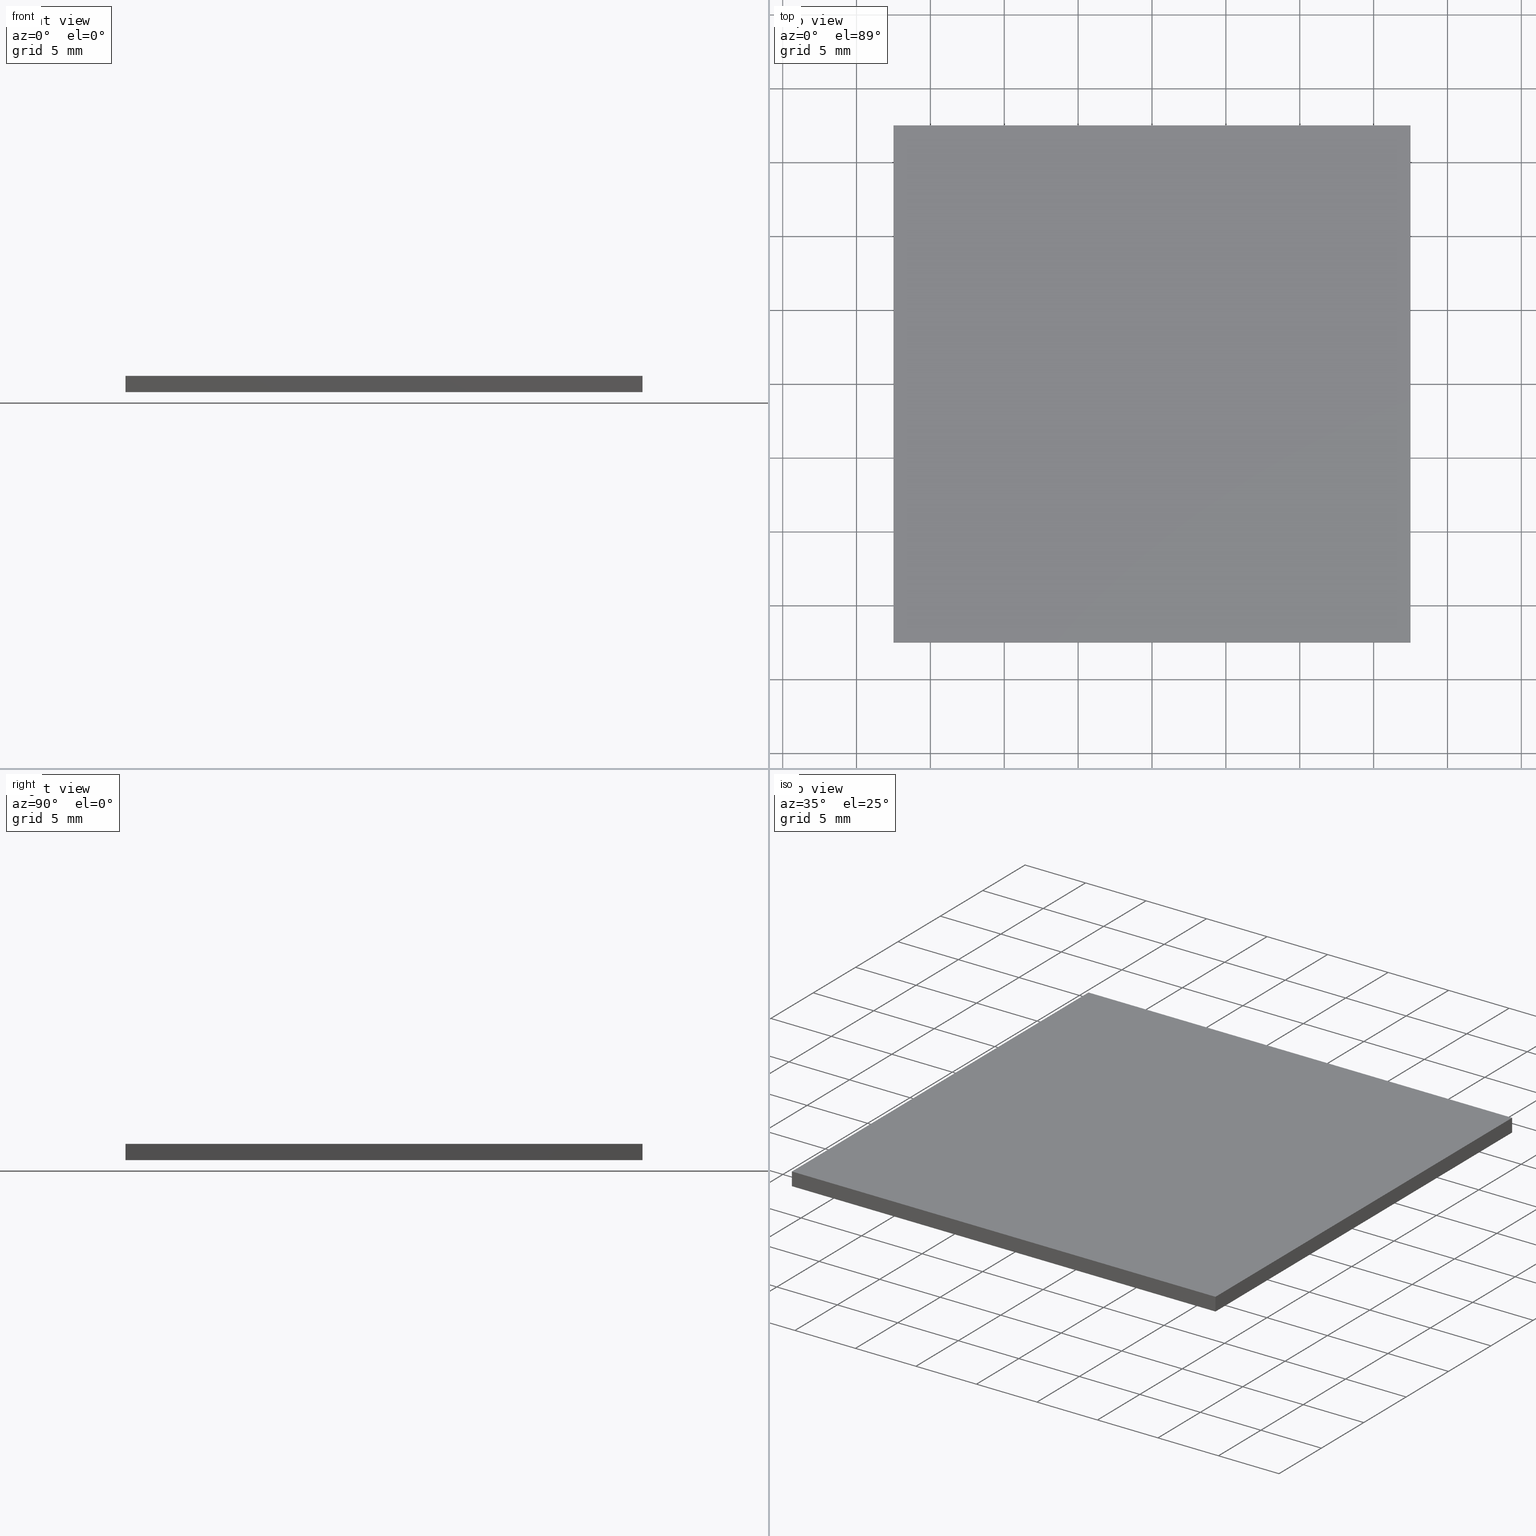
[diagram: canonical four-view strip — front | top / right | iso, engineering-drawing reading convention]
A machine part, canonical four-view strip (front | top / right | iso — engineering-drawing reading convention). The complete STEP part file that produces these views, byte-faithful:
ISO-10303-21;
HEADER;
FILE_DESCRIPTION (( 'STEP AP203' ),
    '1' );
FILE_NAME ('348522.STEP',
    '2024-03-05T01:21:21',
    ( 'Windows User' ),
    ( 'P R C' ),
    'SwSTEP 2.0',
    'SolidWorks 2020',
    '' );
FILE_SCHEMA (( 'CONFIG_CONTROL_DESIGN' ));
ENDSEC;

DATA;
#1 = PERSON_AND_ORGANIZATION ( #55, #57 ) ;
#2 = APPLICATION_CONTEXT ( 'configuration controlled 3d designs of mechanical parts and assemblies' ) ;
#3 = DATE_AND_TIME ( #53, #58 ) ;
#4 = ORIENTED_EDGE ( 'NONE', *, *, #220, .F. ) ;
#5 = PRODUCT_DEFINITION ( 'δ֪', '', #85, #213 ) ;
#6 = FACE_OUTER_BOUND ( 'NONE', #209, .T. ) ;
#7 = AXIS2_PLACEMENT_3D ( 'NONE', #83, #182, #234 ) ;
#8 = DIRECTION ( 'NONE',  ( 1.000000000000000000, 0.000000000000000000, 0.000000000000000000 ) ) ;
#9 = CARTESIAN_POINT ( 'NONE',  ( 17.50000000000000355, -17.49999999999999645, 0.000000000000000000 ) ) ;
#10 = PRODUCT_DEFINITION_SHAPE ( 'NONE', 'NONE',  #5 ) ;
#11 = CARTESIAN_POINT ( 'NONE',  ( 17.50000000000000355, -17.49999999999999645, 1.100000000000000089 ) ) ;
#12 = EDGE_LOOP ( 'NONE', ( #63, #232, #44, #113 ) ) ;
#13 = ADVANCED_FACE ( 'NONE', ( #6 ), #229, .F. ) ;
#14 = CARTESIAN_POINT ( 'NONE',  ( -17.49999999999999645, -17.49999999999999645, 0.000000000000000000 ) ) ;
#15 = CARTESIAN_POINT ( 'NONE',  ( -17.49999999999999645, -17.49999999999999645, 1.100000000000000089 ) ) ;
#16 = CARTESIAN_POINT ( 'NONE',  ( -17.49999999999999645, 17.50000000000000000, 0.000000000000000000 ) ) ;
#17 = CC_DESIGN_PERSON_AND_ORGANIZATION_ASSIGNMENT ( #237, #146, ( #85 ) ) ;
#18 = CALENDAR_DATE ( 2024, 5, 3 ) ;
#19 = AXIS2_PLACEMENT_3D ( 'NONE', #124, #198, #33 ) ;
#20 = COORDINATED_UNIVERSAL_TIME_OFFSET ( 8, 0, .AHEAD. ) ;
#21 = APPROVAL_STATUS ( 'not_yet_approved' ) ;
#22 = ADVANCED_FACE ( 'NONE', ( #46 ), #59, .F. ) ;
#23 = CALENDAR_DATE ( 2024, 5, 3 ) ;
#24 = VECTOR ( 'NONE', #161, 1000.000000000000000 ) ;
#25 = VERTEX_POINT ( 'NONE', #208 ) ;
#26 = EDGE_LOOP ( 'NONE', ( #222, #110, #95, #41 ) ) ;
#27 = CLOSED_SHELL ( 'NONE', ( #22, #13, #49, #176, #179, #100 ) ) ;
#28 = CARTESIAN_POINT ( 'NONE',  ( -17.49999999999999645, -17.49999999999999645, 0.000000000000000000 ) ) ;
#29 = CARTESIAN_POINT ( 'NONE',  ( -17.49999999999999645, -17.49999999999999645, 1.100000000000000089 ) ) ;
#30 = ORIENTED_EDGE ( 'NONE', *, *, #169, .F. ) ;
#31 = LINE ( 'NONE', #99, #158 ) ;
#32 = APPROVAL ( #202, 'δָ��' ) ;
#33 = DIRECTION ( 'NONE',  ( 1.000000000000000000, 0.000000000000000000, 0.000000000000000000 ) ) ;
#34 = CARTESIAN_POINT ( 'NONE',  ( -17.49999999999999645, 17.50000000000000000, 1.100000000000000089 ) ) ;
#35 = CC_DESIGN_SECURITY_CLASSIFICATION ( #122, ( #85 ) ) ;
#36 = DIRECTION ( 'NONE',  ( -0.000000000000000000, -0.000000000000000000, -1.000000000000000000 ) ) ;
#37 = PRODUCT_RELATED_PRODUCT_CATEGORY ( 'detail', '', ( #180 ) ) ;
#38 = CALENDAR_DATE ( 2024, 5, 3 ) ;
#39 = PERSON_AND_ORGANIZATION ( #55, #57 ) ;
#40 = PERSON_AND_ORGANIZATION ( #55, #57 ) ;
#41 = ORIENTED_EDGE ( 'NONE', *, *, #134, .F. ) ;
#42 = VERTEX_POINT ( 'NONE', #43 ) ;
#43 = CARTESIAN_POINT ( 'NONE',  ( 17.50000000000000355, 17.50000000000000000, 0.000000000000000000 ) ) ;
#44 = ORIENTED_EDGE ( 'NONE', *, *, #115, .F. ) ;
#45 = CC_DESIGN_PERSON_AND_ORGANIZATION_ASSIGNMENT ( #40, #152, ( #180 ) ) ;
#46 = FACE_OUTER_BOUND ( 'NONE', #211, .T. ) ;
#47 = ADVANCED_BREP_SHAPE_REPRESENTATION ( '348522', ( #89, #19 ), #167 ) ;
#48 = CARTESIAN_POINT ( 'NONE',  ( 17.50000000000000355, 17.50000000000000000, 1.100000000000000089 ) ) ;
#49 = ADVANCED_FACE ( 'NONE', ( #136 ), #119, .F. ) ;
#50 = LINE ( 'NONE', #196, #24 ) ;
#51 = DIRECTION ( 'NONE',  ( -0.000000000000000000, -1.000000000000000000, -0.000000000000000000 ) ) ;
#52 = DIRECTION ( 'NONE',  ( -1.000000000000000000, -0.000000000000000000, -0.000000000000000000 ) ) ;
#53 = CALENDAR_DATE ( 2024, 5, 3 ) ;
#54 = APPROVAL_DATE_TIME ( #70, #32 ) ;
#55 = PERSON ( 'δָ��', 'δָ��', 'δָ��', ('δָ��'), ('δָ��'), ('δָ��') ) ;
#56 = CC_DESIGN_PERSON_AND_ORGANIZATION_ASSIGNMENT ( #71, #107, ( #85 ) ) ;
#57 = ORGANIZATION ( 'δָ��', 'δָ��', '' ) ;
#58 = LOCAL_TIME ( 9, 21, 21.00000000000000000, #207 ) ;
#59 = PLANE ( 'NONE',  #137 ) ;
#60 = ORIENTED_EDGE ( 'NONE', *, *, #200, .T. ) ;
#61 = DIRECTION ( 'NONE',  ( -0.000000000000000000, -1.000000000000000000, -0.000000000000000000 ) ) ;
#62 = EDGE_CURVE ( 'NONE', #25, #192, #193, .T. ) ;
#63 = ORIENTED_EDGE ( 'NONE', *, *, #171, .T. ) ;
#64 = CARTESIAN_POINT ( 'NONE',  ( -17.49999999999999645, -17.49999999999999645, 1.100000000000000089 ) ) ;
#65 = DIRECTION ( 'NONE',  ( -1.000000000000000000, 0.000000000000000000, -0.000000000000000000 ) ) ;
#66 = FACE_OUTER_BOUND ( 'NONE', #210, .T. ) ;
#67 = EDGE_CURVE ( 'NONE', #172, #117, #177, .T. ) ;
#68 = LINE ( 'NONE', #101, #73 ) ;
#69 = VECTOR ( 'NONE', #165, 1000.000000000000000 ) ;
#70 = DATE_AND_TIME ( #18, #76 ) ;
#71 = PERSON_AND_ORGANIZATION ( #55, #57 ) ;
#72 = ORIENTED_EDGE ( 'NONE', *, *, #220, .T. ) ;
#73 = VECTOR ( 'NONE', #217, 1000.000000000000000 ) ;
#74 = EDGE_CURVE ( 'NONE', #91, #192, #154, .T. ) ;
#75 = VERTEX_POINT ( 'NONE', #227 ) ;
#76 = LOCAL_TIME ( 9, 21, 21.00000000000000000, #168 ) ;
#77 = FACE_OUTER_BOUND ( 'NONE', #26, .T. ) ;
#78 = EDGE_CURVE ( 'NONE', #117, #42, #93, .T. ) ;
#79 = ORIENTED_EDGE ( 'NONE', *, *, #62, .T. ) ;
#80 = LOCAL_TIME ( 9, 21, 21.00000000000000000, #20 ) ;
#81 = ORIENTED_EDGE ( 'NONE', *, *, #115, .T. ) ;
#82 = CARTESIAN_POINT ( 'NONE',  ( -17.49999999999999645, -17.49999999999999645, 1.100000000000000089 ) ) ;
#83 = CARTESIAN_POINT ( 'NONE',  ( 0.000000000000000000, 0.000000000000000000, 0.000000000000000000 ) ) ;
#84 = COORDINATED_UNIVERSAL_TIME_OFFSET ( 8, 0, .AHEAD. ) ;
#85 = PRODUCT_DEFINITION_FORMATION_WITH_SPECIFIED_SOURCE ( '�κ�', '', #180, .NOT_KNOWN. ) ;
#86 = CC_DESIGN_DATE_AND_TIME_ASSIGNMENT ( #185, #106, ( #5 ) ) ;
#87 = APPLICATION_PROTOCOL_DEFINITION ( 'international standard', 'config_control_design', 1994, #2 ) ;
#88 = SHAPE_DEFINITION_REPRESENTATION ( #10, #47 ) ;
#89 = MANIFOLD_SOLID_BREP ( '͹̨-����1', #27 ) ;
#90 = AXIS2_PLACEMENT_3D ( 'NONE', #226, #173, #175 ) ;
#91 = VERTEX_POINT ( 'NONE', #64 ) ;
#92 = ORIENTED_EDGE ( 'NONE', *, *, #169, .T. ) ;
#93 = LINE ( 'NONE', #9, #96 ) ;
#94 = ORIENTED_EDGE ( 'NONE', *, *, #151, .T. ) ;
#95 = ORIENTED_EDGE ( 'NONE', *, *, #62, .F. ) ;
#96 = VECTOR ( 'NONE', #231, 1000.000000000000000 ) ;
#97 = PLANE ( 'NONE',  #181 ) ;
#98 = MECHANICAL_CONTEXT ( 'NONE', #230, 'mechanical' ) ;
#99 = CARTESIAN_POINT ( 'NONE',  ( -17.49999999999999645, 17.50000000000000000, 1.100000000000000089 ) ) ;
#100 = ADVANCED_FACE ( 'NONE', ( #77 ), #155, .T. ) ;
#101 = CARTESIAN_POINT ( 'NONE',  ( -17.49999999999999645, 17.50000000000000000, 1.100000000000000089 ) ) ;
#102 = CC_DESIGN_APPROVAL ( #225, ( #85 ) ) ;
#103 = APPROVAL_ROLE ( '' ) ;
#104 = APPROVAL_ROLE ( '' ) ;
#105 = LOCAL_TIME ( 9, 21, 21.00000000000000000, #84 ) ;
#106 = DATE_TIME_ROLE ( 'creation_date' ) ;
#107 = PERSON_AND_ORGANIZATION_ROLE ( 'creator' ) ;
#108 = PERSON_AND_ORGANIZATION ( #55, #57 ) ;
#109 = APPROVAL ( #21, 'δָ��' ) ;
#110 = ORIENTED_EDGE ( 'NONE', *, *, #171, .F. ) ;
#111 = VECTOR ( 'NONE', #156, 1000.000000000000000 ) ;
#112 = APPROVAL_PERSON_ORGANIZATION ( #147, #109, #104 ) ;
#113 = ORIENTED_EDGE ( 'NONE', *, *, #74, .T. ) ;
#114 = CARTESIAN_POINT ( 'NONE',  ( 17.50000000000000355, -17.49999999999999645, 1.100000000000000089 ) ) ;
#115 = EDGE_CURVE ( 'NONE', #91, #172, #215, .T. ) ;
#116 = DIRECTION ( 'NONE',  ( 0.000000000000000000, 0.000000000000000000, -1.000000000000000000 ) ) ;
#117 = VERTEX_POINT ( 'NONE', #199 ) ;
#118 = CC_DESIGN_DATE_AND_TIME_ASSIGNMENT ( #148, #204, ( #122 ) ) ;
#119 = PLANE ( 'NONE',  #150 ) ;
#120 = DIRECTION ( 'NONE',  ( 1.000000000000000000, 0.000000000000000000, 0.000000000000000000 ) ) ;
#121 = VECTOR ( 'NONE', #120, 1000.000000000000000 ) ;
#122 = SECURITY_CLASSIFICATION ( '', '', #132 ) ;
#123 = APPLICATION_PROTOCOL_DEFINITION ( 'international standard', 'config_control_design', 1994, #230 ) ;
#124 = CARTESIAN_POINT ( 'NONE',  ( 0.000000000000000000, 0.000000000000000000, 0.000000000000000000 ) ) ;
#125 = DIRECTION ( 'NONE',  ( 0.000000000000000000, 1.000000000000000000, 0.000000000000000000 ) ) ;
#126 = CARTESIAN_POINT ( 'NONE',  ( -17.49999999999999645, -17.49999999999999645, 0.000000000000000000 ) ) ;
#127 = VECTOR ( 'NONE', #235, 1000.000000000000000 ) ;
#128 = CC_DESIGN_APPROVAL ( #109, ( #122 ) ) ;
#129 = APPROVAL_ROLE ( '' ) ;
#130 = VECTOR ( 'NONE', #36, 1000.000000000000000 ) ;
#131 = LOCAL_TIME ( 9, 21, 21.00000000000000000, #223 ) ;
#132 = SECURITY_CLASSIFICATION_LEVEL ( 'unclassified' ) ;
#133 = DIRECTION ( 'NONE',  ( 0.000000000000000000, 0.000000000000000000, 1.000000000000000000 ) ) ;
#134 = EDGE_CURVE ( 'NONE', #42, #25, #144, .T. ) ;
#135 = DIRECTION ( 'NONE',  ( -1.000000000000000000, 0.000000000000000000, 0.000000000000000000 ) ) ;
#136 = FACE_OUTER_BOUND ( 'NONE', #139, .T. ) ;
#137 = AXIS2_PLACEMENT_3D ( 'NONE', #114, #135, #133 ) ;
#138 = ORIENTED_EDGE ( 'NONE', *, *, #134, .T. ) ;
#139 = EDGE_LOOP ( 'NONE', ( #79, #195, #30, #60 ) ) ;
#140 = UNCERTAINTY_MEASURE_WITH_UNIT (LENGTH_MEASURE( 1.000000000000000082E-05 ), #212, 'distance_accuracy_value', 'NONE');
#141 =( NAMED_UNIT ( * ) SI_UNIT ( $, .STERADIAN. ) SOLID_ANGLE_UNIT ( ) );
#142 = VECTOR ( 'NONE', #174, 1000.000000000000000 ) ;
#143 = CARTESIAN_POINT ( 'NONE',  ( 0.000000000000000000, 0.000000000000000000, 1.100000000000000089 ) ) ;
#144 = LINE ( 'NONE', #16, #127 ) ;
#145 = LINE ( 'NONE', #14, #69 ) ;
#146 = PERSON_AND_ORGANIZATION_ROLE ( 'design_supplier' ) ;
#147 = PERSON_AND_ORGANIZATION ( #55, #57 ) ;
#148 = DATE_AND_TIME ( #38, #80 ) ;
#149 = ORIENTED_EDGE ( 'NONE', *, *, #78, .T. ) ;
#150 = AXIS2_PLACEMENT_3D ( 'NONE', #194, #8, #116 ) ;
#151 = EDGE_CURVE ( 'NONE', #172, #75, #50, .T. ) ;
#152 = PERSON_AND_ORGANIZATION_ROLE ( 'design_owner' ) ;
#153 = ORIENTED_EDGE ( 'NONE', *, *, #67, .T. ) ;
#154 = LINE ( 'NONE', #29, #111 ) ;
#155 = PLANE ( 'NONE',  #7 ) ;
#156 = DIRECTION ( 'NONE',  ( -0.000000000000000000, -0.000000000000000000, -1.000000000000000000 ) ) ;
#157 = CC_DESIGN_PERSON_AND_ORGANIZATION_ASSIGNMENT ( #184, #205, ( #5 ) ) ;
#158 = VECTOR ( 'NONE', #52, 1000.000000000000000 ) ;
#159 = VERTEX_POINT ( 'NONE', #34 ) ;
#160 =( NAMED_UNIT ( * ) PLANE_ANGLE_UNIT ( ) SI_UNIT ( $, .RADIAN. ) );
#161 = DIRECTION ( 'NONE',  ( 0.000000000000000000, 1.000000000000000000, 0.000000000000000000 ) ) ;
#162 = VECTOR ( 'NONE', #61, 1000.000000000000000 ) ;
#163 = CARTESIAN_POINT ( 'NONE',  ( -17.49999999999999645, -17.49999999999999645, 1.100000000000000089 ) ) ;
#164 = DIRECTION ( 'NONE',  ( 0.000000000000000000, 0.000000000000000000, -1.000000000000000000 ) ) ;
#165 = DIRECTION ( 'NONE',  ( 1.000000000000000000, 0.000000000000000000, 0.000000000000000000 ) ) ;
#166 = APPROVAL_DATE_TIME ( #170, #225 ) ;
#167 =( GEOMETRIC_REPRESENTATION_CONTEXT ( 3 ) GLOBAL_UNCERTAINTY_ASSIGNED_CONTEXT ( ( #140 ) ) GLOBAL_UNIT_ASSIGNED_CONTEXT ( ( #212, #160, #141 ) ) REPRESENTATION_CONTEXT ( 'NONE', 'WORKASPACE' ) );
#168 = COORDINATED_UNIVERSAL_TIME_OFFSET ( 8, 0, .AHEAD. ) ;
#169 = EDGE_CURVE ( 'NONE', #159, #91, #201, .T. ) ;
#170 = DATE_AND_TIME ( #221, #131 ) ;
#171 = EDGE_CURVE ( 'NONE', #192, #117, #145, .T. ) ;
#172 = VERTEX_POINT ( 'NONE', #178 ) ;
#173 = DIRECTION ( 'NONE',  ( 0.000000000000000000, -1.000000000000000000, 0.000000000000000000 ) ) ;
#174 = DIRECTION ( 'NONE',  ( -0.000000000000000000, -0.000000000000000000, -1.000000000000000000 ) ) ;
#175 = DIRECTION ( 'NONE',  ( 0.000000000000000000, -0.000000000000000000, -1.000000000000000000 ) ) ;
#176 = ADVANCED_FACE ( 'NONE', ( #216 ), #97, .F. ) ;
#177 = LINE ( 'NONE', #11, #142 ) ;
#178 = CARTESIAN_POINT ( 'NONE',  ( 17.50000000000000355, -17.49999999999999645, 1.100000000000000089 ) ) ;
#179 = ADVANCED_FACE ( 'NONE', ( #66 ), #236, .F. ) ;
#180 = PRODUCT ( '348522', '348522', '', ( #98 ) ) ;
#181 = AXIS2_PLACEMENT_3D ( 'NONE', #15, #125, #183 ) ;
#182 = DIRECTION ( 'NONE',  ( 0.000000000000000000, 0.000000000000000000, -1.000000000000000000 ) ) ;
#183 = DIRECTION ( 'NONE',  ( 0.000000000000000000, -0.000000000000000000, 1.000000000000000000 ) ) ;
#184 = PERSON_AND_ORGANIZATION ( #55, #57 ) ;
#185 = DATE_AND_TIME ( #23, #105 ) ;
#186 = APPROVAL_PERSON_ORGANIZATION ( #39, #32, #103 ) ;
#187 = ORIENTED_EDGE ( 'NONE', *, *, #200, .F. ) ;
#188 = PERSON_AND_ORGANIZATION_ROLE ( 'classification_officer' ) ;
#189 = ORIENTED_EDGE ( 'NONE', *, *, #206, .T. ) ;
#190 = VECTOR ( 'NONE', #51, 1000.000000000000000 ) ;
#191 = ORIENTED_EDGE ( 'NONE', *, *, #151, .F. ) ;
#192 = VERTEX_POINT ( 'NONE', #126 ) ;
#193 = LINE ( 'NONE', #28, #162 ) ;
#194 = CARTESIAN_POINT ( 'NONE',  ( -17.49999999999999645, -17.49999999999999645, 1.100000000000000089 ) ) ;
#195 = ORIENTED_EDGE ( 'NONE', *, *, #74, .F. ) ;
#196 = CARTESIAN_POINT ( 'NONE',  ( 17.50000000000000355, -17.49999999999999645, 1.100000000000000089 ) ) ;
#197 = LINE ( 'NONE', #48, #130 ) ;
#198 = DIRECTION ( 'NONE',  ( 0.000000000000000000, 0.000000000000000000, 1.000000000000000000 ) ) ;
#199 = CARTESIAN_POINT ( 'NONE',  ( 17.50000000000000355, -17.49999999999999645, 0.000000000000000000 ) ) ;
#200 = EDGE_CURVE ( 'NONE', #159, #25, #68, .T. ) ;
#201 = LINE ( 'NONE', #163, #190 ) ;
#202 = APPROVAL_STATUS ( 'not_yet_approved' ) ;
#203 = APPROVAL_DATE_TIME ( #3, #109 ) ;
#204 = DATE_TIME_ROLE ( 'classification_date' ) ;
#205 = PERSON_AND_ORGANIZATION_ROLE ( 'creator' ) ;
#206 = EDGE_CURVE ( 'NONE', #75, #159, #31, .T. ) ;
#207 = COORDINATED_UNIVERSAL_TIME_OFFSET ( 8, 0, .AHEAD. ) ;
#208 = CARTESIAN_POINT ( 'NONE',  ( -17.49999999999999645, 17.50000000000000000, 0.000000000000000000 ) ) ;
#209 = EDGE_LOOP ( 'NONE', ( #138, #187, #224, #72 ) ) ;
#210 = EDGE_LOOP ( 'NONE', ( #94, #189, #92, #81 ) ) ;
#211 = EDGE_LOOP ( 'NONE', ( #149, #4, #191, #153 ) ) ;
#212 =( LENGTH_UNIT ( ) NAMED_UNIT ( * ) SI_UNIT ( .MILLI., .METRE. ) );
#213 = DESIGN_CONTEXT ( 'detailed design', #2, 'design' ) ;
#214 = CC_DESIGN_APPROVAL ( #32, ( #5 ) ) ;
#215 = LINE ( 'NONE', #82, #121 ) ;
#216 = FACE_OUTER_BOUND ( 'NONE', #12, .T. ) ;
#217 = DIRECTION ( 'NONE',  ( -0.000000000000000000, -0.000000000000000000, -1.000000000000000000 ) ) ;
#218 = APPROVAL_PERSON_ORGANIZATION ( #108, #225, #129 ) ;
#219 = APPROVAL_STATUS ( 'not_yet_approved' ) ;
#220 = EDGE_CURVE ( 'NONE', #75, #42, #197, .T. ) ;
#221 = CALENDAR_DATE ( 2024, 5, 3 ) ;
#222 = ORIENTED_EDGE ( 'NONE', *, *, #78, .F. ) ;
#223 = COORDINATED_UNIVERSAL_TIME_OFFSET ( 8, 0, .AHEAD. ) ;
#224 = ORIENTED_EDGE ( 'NONE', *, *, #206, .F. ) ;
#225 = APPROVAL ( #219, 'δָ��' ) ;
#226 = CARTESIAN_POINT ( 'NONE',  ( -17.49999999999999645, 17.50000000000000000, 1.100000000000000089 ) ) ;
#227 = CARTESIAN_POINT ( 'NONE',  ( 17.50000000000000355, 17.50000000000000000, 1.100000000000000089 ) ) ;
#228 = CC_DESIGN_PERSON_AND_ORGANIZATION_ASSIGNMENT ( #1, #188, ( #122 ) ) ;
#229 = PLANE ( 'NONE',  #90 ) ;
#230 = APPLICATION_CONTEXT ( 'configuration controlled 3d designs of mechanical parts and assemblies' ) ;
#231 = DIRECTION ( 'NONE',  ( 0.000000000000000000, 1.000000000000000000, 0.000000000000000000 ) ) ;
#232 = ORIENTED_EDGE ( 'NONE', *, *, #67, .F. ) ;
#233 = AXIS2_PLACEMENT_3D ( 'NONE', #143, #164, #65 ) ;
#234 = DIRECTION ( 'NONE',  ( -1.000000000000000000, 0.000000000000000000, -0.000000000000000000 ) ) ;
#235 = DIRECTION ( 'NONE',  ( -1.000000000000000000, -0.000000000000000000, -0.000000000000000000 ) ) ;
#236 = PLANE ( 'NONE',  #233 ) ;
#237 = PERSON_AND_ORGANIZATION ( #55, #57 ) ;
ENDSEC;
END-ISO-10303-21;
